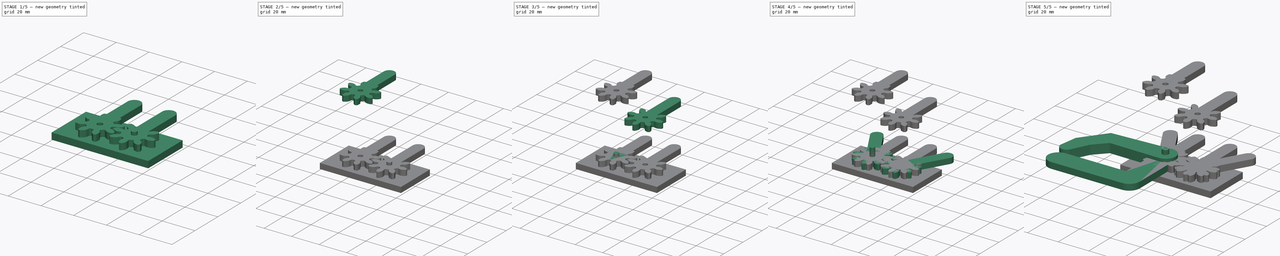
[diagram: build sequence overview — one tinted view per stage of 5, left to right]
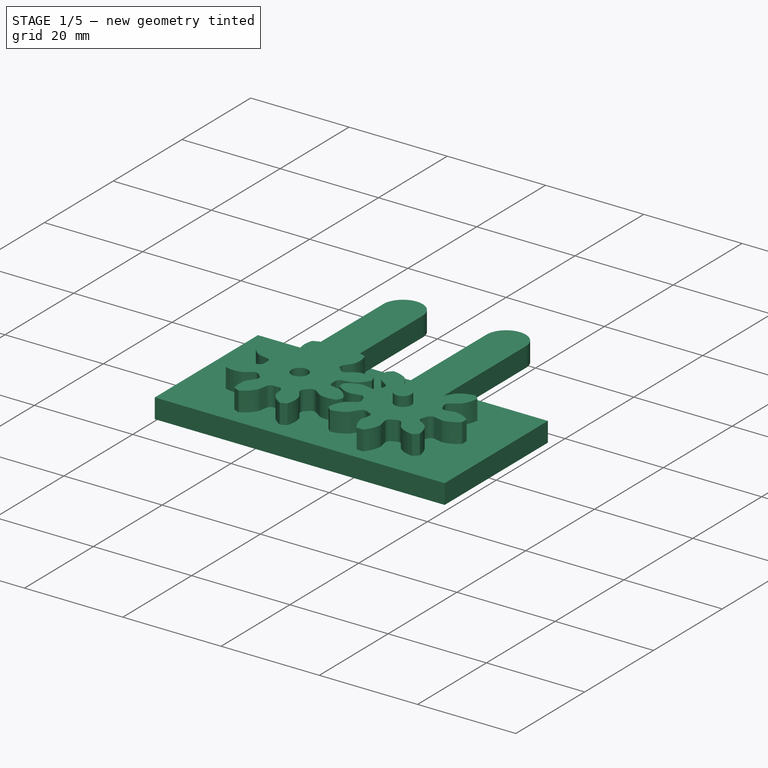
[diagram: stage 1 of 5 — iso view after this stage's code; geometry added in this stage tinted green]
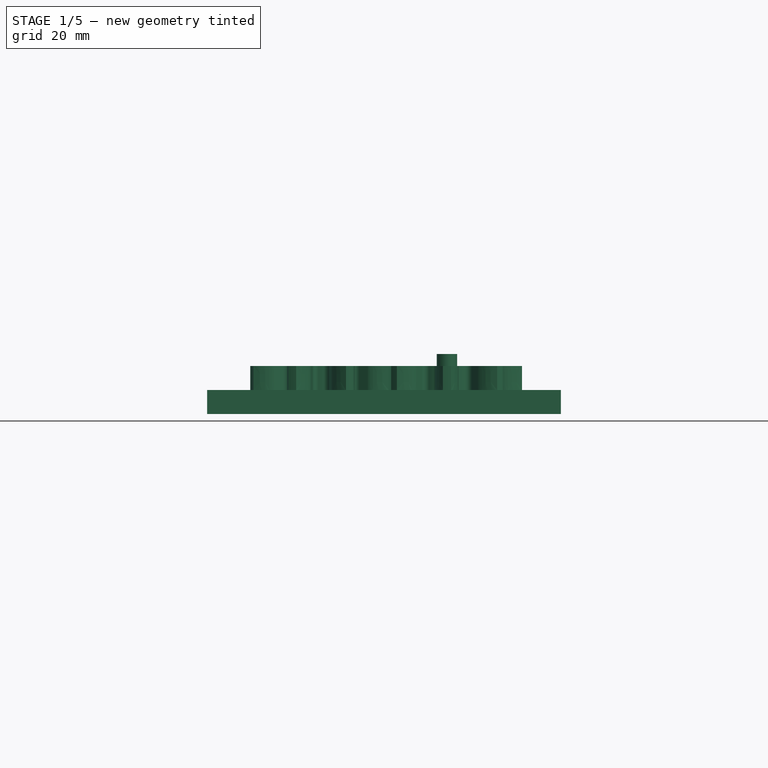
[diagram: stage 1 of 5 — front view after this stage's code; geometry added in this stage tinted green]
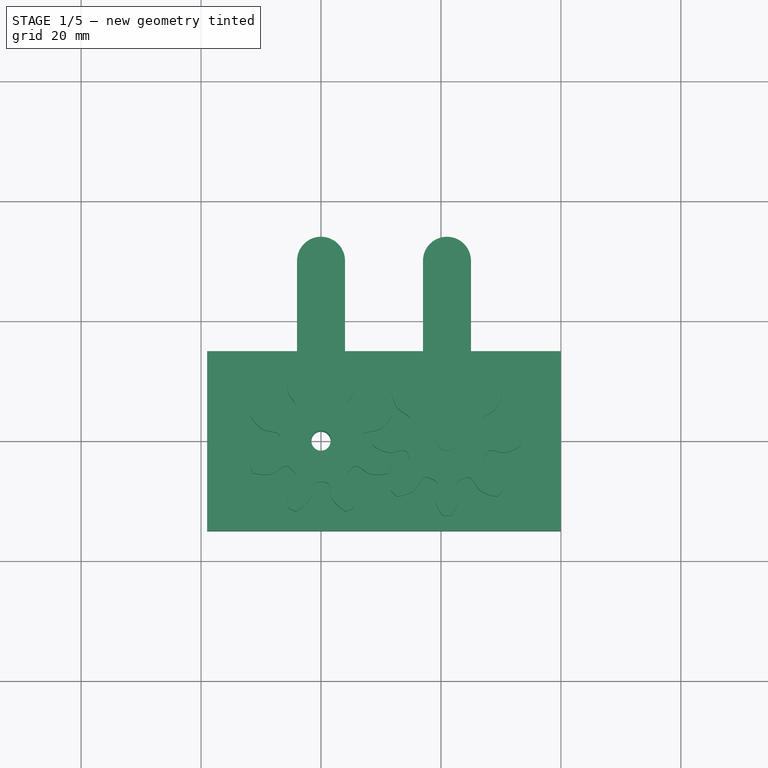
[diagram: stage 1 of 5 — top view after this stage's code; geometry added in this stage tinted green]
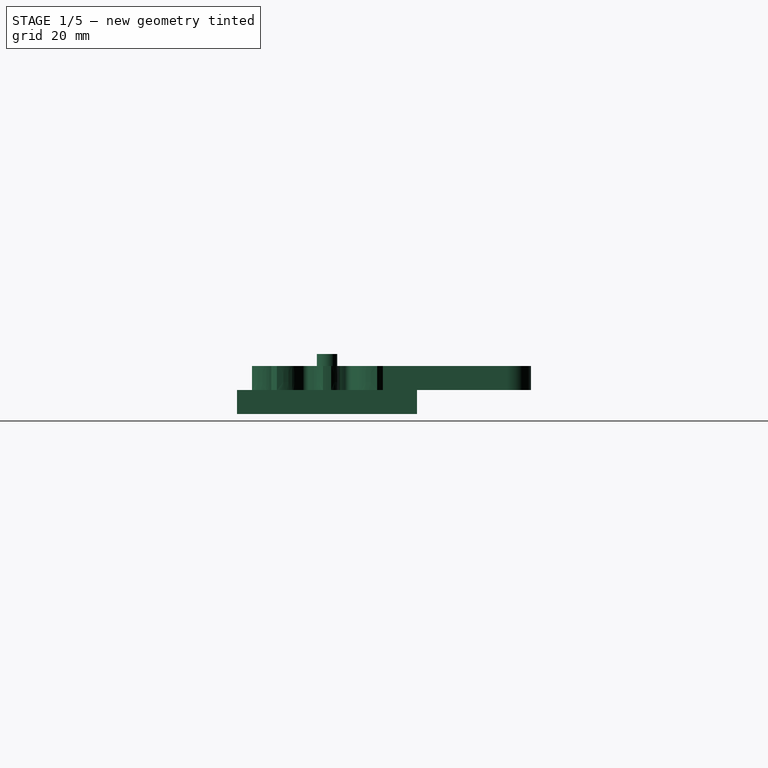
[diagram: stage 1 of 5 — right view after this stage's code; geometry added in this stage tinted green]
FCSTD DOCUMENT  (FreeCAD 0.19R24291 (Git))
Label: Pinza-simple-sim-alambrico
License: Creative Commons Attribution-ShareAlike
LicenseURL: http://creativecommons.org/licenses/by-sa/4.0/
objects: Part::Extrusion×20, Part::Feature×15, Sketcher::SketchObject×12, Part::Part2DObjectPython×10, Part::Cylinder×9, Part::Cut×9, Part::MultiFuse×6, App::DocumentObjectGroup×5, App::Part×2, Part::Mirroring×1
note: 82 computed .brp shape members not serialized (recipe doc carries the construction recipe); baked Part::Feature solids carry a one-line shape summary decoded from their .brp

FEATURE [App::DocumentObjectGroup] Group  label="Engranajes"
  Group = -> [Extrude003,Extrude004]
FEATURE [Part::Part2DObjectPython] InvoluteGear002  # Draft 2D object (typed FeaturePython)
  ExternalGear = true
  HighPrecision = true
  Modules = 2.5
  NumberOfTeeth = 8
  PressureAngle = 20
FEATURE [Part::Part2DObjectPython] InvoluteGear003  # Draft 2D object (typed FeaturePython)
  ExternalGear = true
  HighPrecision = true
  Modules = 2.5
  NumberOfTeeth = 8
  PressureAngle = 20
FEATURE [Part::Extrusion] Extrude005  label="Engranaje-izqdo"
  Base = -> InvoluteGear003
  Dir = (0,0,1)
  DirMode = 2
  FaceMakerClass = Part::FaceMakerBullseye
  LengthFwd = 4
  LengthRev = 0
  Placement = pos=(0,0,0) rot=(0,0,1;0.392699rad)
  Solid = true
  Symmetric = false
FEATURE [Part::Extrusion] Extrude006
  Base = -> InvoluteGear002
  Dir = (0,0,1)
  DirMode = 2
  FaceMakerClass = Part::FaceMakerBullseye
  LengthFwd = 4
  LengthRev = 0
  Placement = pos=(21,0,0) rot=(0,0,1;0rad)
  Solid = true
  Symmetric = false
FEATURE [Sketcher::SketchObject] Sketch002
  FullyConstrained = true
  sketch-geometry (4):
    g0: ArcOfCircle CenterX=0 CenterY=0 CenterZ=0 NormalX=0 NormalY=0 NormalZ=1 AngleXU=0 Radius=4 StartAngle=3.14159 EndAngle=6.28319
    g1: ArcOfCircle CenterX=0 CenterY=30 CenterZ=0 NormalX=0 NormalY=0 NormalZ=1 AngleXU=0 Radius=4 StartAngle=1e-16 EndAngle=3.14159
    g2: LineSegment StartX=4 StartY=-1e-15 StartZ=0 EndX=4 EndY=30 EndZ=0
    g3: LineSegment StartX=-4 StartY=-1.3e-15 StartZ=0 EndX=-4 EndY=30 EndZ=0
  constraints (9):
    c: Tangent(g0,g3) = 1.5708
    c: Tangent(g0,g2) = -1.5708
    c: Tangent(g2,g1) = -1.5708
    c: Tangent(g3,g1) = 1.5708
    c: Vertical(g2)
    c: Equal(g0,g1)
    c: Coincident(g0,g-1)
    c: DistanceY(g0,g1) = 30
    c: Radius(g0) = 4
FEATURE [Part::Extrusion] Extrude007  label="link"
  Base = -> Sketch002
  Dir = (0,0,1)
  DirMode = 2
  FaceMakerClass = Part::FaceMakerBullseye
  LengthFwd = 4
  LengthRev = 0
  Solid = true
  Symmetric = false
FEATURE [Part::MultiFuse] Fusion
  Refine = true
  Shapes = -> [Extrude005,Extrude007]
FEATURE [Sketcher::SketchObject] Sketch003
  FullyConstrained = true
  sketch-geometry (4):
    g0: ArcOfCircle CenterX=0 CenterY=0 CenterZ=0 NormalX=0 NormalY=0 NormalZ=1 AngleXU=0 Radius=4 StartAngle=3.14159 EndAngle=6.28319
    g1: ArcOfCircle CenterX=0 CenterY=30 CenterZ=0 NormalX=0 NormalY=0 NormalZ=1 AngleXU=0 Radius=4 StartAngle=1e-16 EndAngle=3.14159
    g2: LineSegment StartX=4 StartY=-1e-15 StartZ=0 EndX=4 EndY=30 EndZ=0
    g3: LineSegment StartX=-4 StartY=-1.3e-15 StartZ=0 EndX=-4 EndY=30 EndZ=0
  constraints (9):
    c: Tangent(g0,g3) = 1.5708
    c: Tangent(g0,g2) = -1.5708
    c: Tangent(g2,g1) = -1.5708
    c: Tangent(g3,g1) = 1.5708
    c: Vertical(g2)
    c: Equal(g0,g1)
    c: Coincident(g0,g-1)
    c: DistanceY(g0,g1) = 30
    c: Radius(g0) = 4
FEATURE [Part::Extrusion] Extrude008  label="link001"
  Base = -> Sketch003
  Dir = (0,0,1)
  DirMode = 2
  FaceMakerClass = Part::FaceMakerBullseye
  LengthFwd = 4
  LengthRev = 0
  Placement = pos=(21,0,0) rot=(0,0,1;0rad)
  Solid = true
  Symmetric = false
FEATURE [Part::Cylinder] Cylinder003
  Angle = 360
  AttacherType = Attacher::AttachEngine3D
  Height = 10
  Placement = pos=(0,0,-4) rot=(0,0,1;0rad)
  Radius = 1.7
FEATURE [Part::Cylinder] Cylinder004
  Angle = 360
  AttacherType = Attacher::AttachEngine3D
  Height = 10
  Placement = pos=(21,0,-4) rot=(0,0,1;0rad)
  Radius = 1.7
FEATURE [Part::Cut] Cut004
  Base = -> Fusion
  Refine = true
  Tool = -> Cylinder003
FEATURE [Sketcher::SketchObject] Sketch004
  FullyConstrained = true
  sketch-geometry (8):
    g0: LineSegment StartX=1e-16 StartY=0 StartZ=0 EndX=21 EndY=0 EndZ=0
    g1: LineSegment StartX=10.5 StartY=0 StartZ=0 EndX=10.5 EndY=15 EndZ=0
    g2: LineSegment StartX=-19 StartY=15 StartZ=0 EndX=40 EndY=15 EndZ=0
    g3: LineSegment StartX=40 StartY=15 StartZ=0 EndX=40 EndY=-15 EndZ=0
    g4: LineSegment StartX=40 StartY=-15 StartZ=0 EndX=-19 EndY=-15 EndZ=0
    g5: LineSegment StartX=-19 StartY=-15 StartZ=0 EndX=-19 EndY=15 EndZ=0
    g6: Circle CenterX=0 CenterY=0 CenterZ=0 NormalX=0 NormalY=0 NormalZ=1 AngleXU=0 Radius=1.6
    g7: Circle CenterX=21 CenterY=0 CenterZ=0 NormalX=0 NormalY=0 NormalZ=1 AngleXU=0 Radius=1.6
  constraints (21):
    c: Coincident(g0,g-1)
    c: PointOnObject(g0,g-1)
    c: PointOnObject(g1,g0)
    c: DistanceX(g0,g0) = 21
    c: Coincident(g2,g3)
    c: Coincident(g3,g4)
    c: Horizontal(g4)
    c: Coincident(g4,g5)
    c: Coincident(g5,g2)
    c: PointOnObject(g1,g2)
    c: Vertical(g5)
    c: Vertical(g3)
    c: Symmetric(g2,g3,g1)
    c: Symmetric(g0,g0,g1)
    c: Horizontal(g2)
    c: DistanceY(g5,g5) = 30
    c: DistanceX(g4,g4) = 59
    c: Coincident(g6,g-1)
    c: Coincident(g7,g0)
    c: Equal(g7,g6)
    c: Diameter(g7) = 3.2
FEATURE [Part::Extrusion] Extrude009
  Base = -> Sketch004
  Dir = (0,0,1)
  DirMode = 2
  FaceMakerClass = Part::FaceMakerBullseye
  LengthFwd = 4
  LengthRev = 0
  Reversed = true
  Solid = true
  Symmetric = false
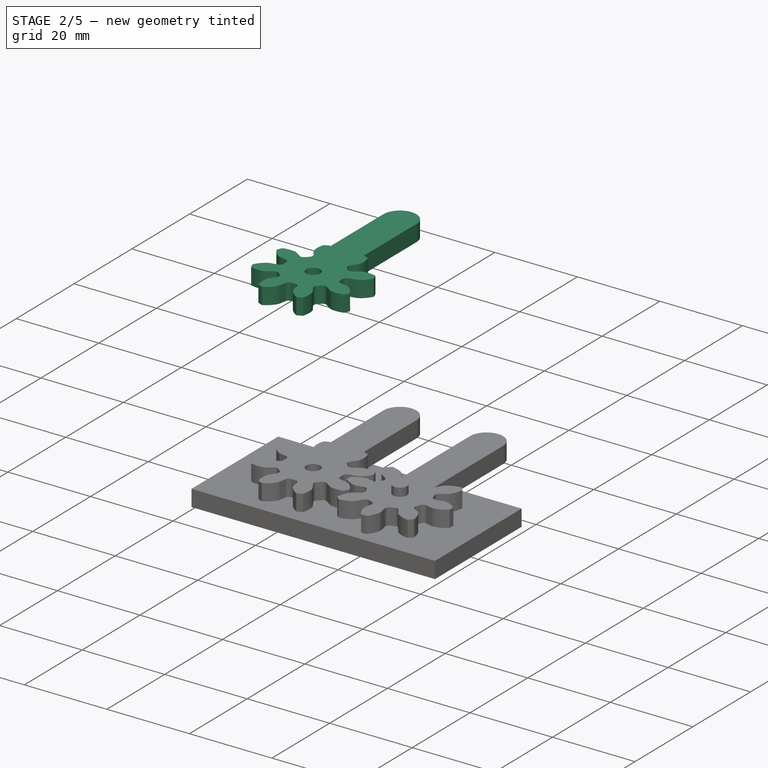
[diagram: stage 2 of 5 — iso view after this stage's code; geometry added in this stage tinted green]
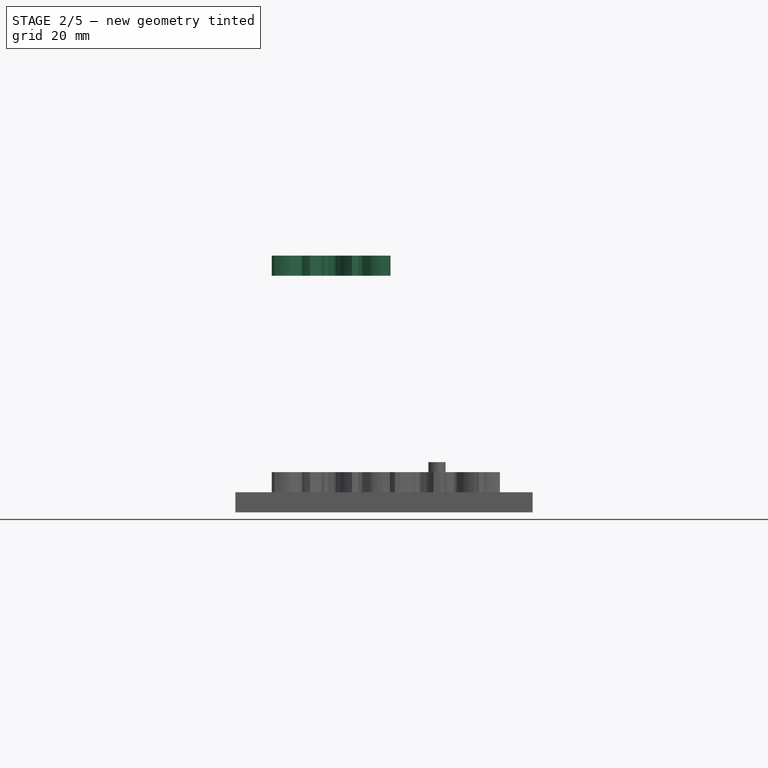
[diagram: stage 2 of 5 — front view after this stage's code; geometry added in this stage tinted green]
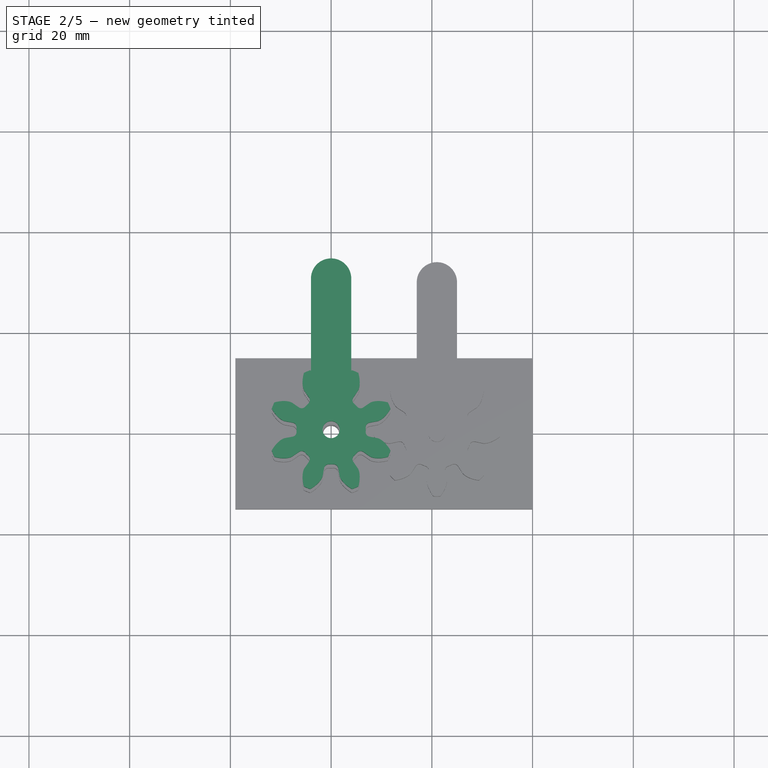
[diagram: stage 2 of 5 — top view after this stage's code; geometry added in this stage tinted green]
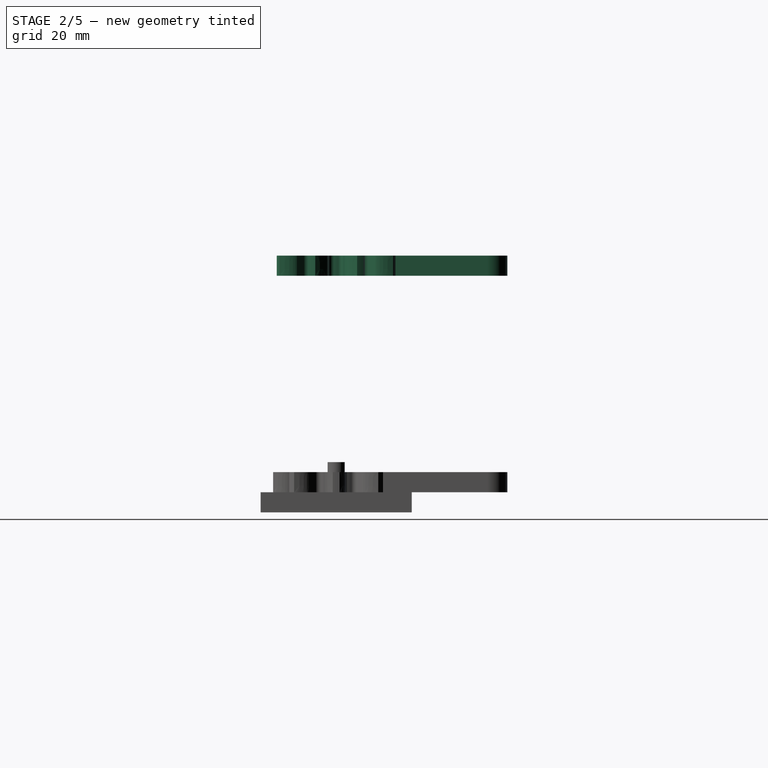
[diagram: stage 2 of 5 — right view after this stage's code; geometry added in this stage tinted green]
FEATURE [Part::MultiFuse] Fusion001
  Refine = true
  Shapes = -> [Extrude008,Extrude006]
FEATURE [Part::Cut] Cut003
  Base = -> Fusion001
  Refine = true
  Tool = -> Cylinder004
FEATURE [Part::Part2DObjectPython] InvoluteGear006  # Draft 2D object (typed FeaturePython)
  ExternalGear = true
  HighPrecision = true
  Modules = 2.5
  NumberOfTeeth = 8
  PressureAngle = 20
FEATURE [Part::Part2DObjectPython] InvoluteGear007  # Draft 2D object (typed FeaturePython)
  ExternalGear = true
  HighPrecision = true
  Modules = 2.5
  NumberOfTeeth = 8
  PressureAngle = 20
FEATURE [Part::Extrusion] Extrude018  label="Engranaje-izqdo002"
  Base = -> InvoluteGear007
  Dir = (0,0,1)
  DirMode = 2
  FaceMakerClass = Part::FaceMakerBullseye
  LengthFwd = 4
  LengthRev = 0
  Placement = pos=(0,0,0) rot=(0,0,1;0.392699rad)
  Solid = true
  Symmetric = false
FEATURE [Sketcher::SketchObject] Sketch011
  FullyConstrained = true
  sketch-geometry (4):
    g0: ArcOfCircle CenterX=0 CenterY=0 CenterZ=0 NormalX=0 NormalY=0 NormalZ=1 AngleXU=0 Radius=4 StartAngle=3.14159 EndAngle=6.28319
    g1: ArcOfCircle CenterX=0 CenterY=30 CenterZ=0 NormalX=0 NormalY=0 NormalZ=1 AngleXU=0 Radius=4 StartAngle=1e-16 EndAngle=3.14159
    g2: LineSegment StartX=4 StartY=-1e-15 StartZ=0 EndX=4 EndY=30 EndZ=0
    g3: LineSegment StartX=-4 StartY=-1.3e-15 StartZ=0 EndX=-4 EndY=30 EndZ=0
  constraints (9):
    c: Tangent(g0,g3) = 1.5708
    c: Tangent(g0,g2) = -1.5708
    c: Tangent(g2,g1) = -1.5708
    c: Tangent(g3,g1) = 1.5708
    c: Vertical(g2)
    c: Equal(g0,g1)
    c: Coincident(g0,g-1)
    c: DistanceY(g0,g1) = 30
    c: Radius(g0) = 4
FEATURE [Part::Extrusion] Extrude020  label="link004"
  Base = -> Sketch011
  Dir = (0,0,1)
  DirMode = 2
  FaceMakerClass = Part::FaceMakerBullseye
  LengthFwd = 4
  LengthRev = 0
  Solid = true
  Symmetric = false
FEATURE [Part::MultiFuse] Fusion004
  Refine = true
  Shapes = -> [Extrude018,Extrude020]
FEATURE [Sketcher::SketchObject] Sketch012
  FullyConstrained = true
  sketch-geometry (4):
    g0: ArcOfCircle CenterX=0 CenterY=0 CenterZ=0 NormalX=0 NormalY=0 NormalZ=1 AngleXU=0 Radius=4 StartAngle=3.14159 EndAngle=6.28319
    g1: ArcOfCircle CenterX=0 CenterY=30 CenterZ=0 NormalX=0 NormalY=0 NormalZ=1 AngleXU=0 Radius=4 StartAngle=1e-16 EndAngle=3.14159
    g2: LineSegment StartX=4 StartY=-1e-15 StartZ=0 EndX=4 EndY=30 EndZ=0
    g3: LineSegment StartX=-4 StartY=-1.3e-15 StartZ=0 EndX=-4 EndY=30 EndZ=0
  constraints (9):
    c: Tangent(g0,g3) = 1.5708
    c: Tangent(g0,g2) = -1.5708
    c: Tangent(g2,g1) = -1.5708
    c: Tangent(g3,g1) = 1.5708
    c: Vertical(g2)
    c: Equal(g0,g1)
    c: Coincident(g0,g-1)
    c: DistanceY(g0,g1) = 30
    c: Radius(g0) = 4
FEATURE [Part::Extrusion] Extrude021  label="link005"
  Base = -> Sketch012
  Dir = (0,0,1)
  DirMode = 2
  FaceMakerClass = Part::FaceMakerBullseye
  LengthFwd = 4
  LengthRev = 0
  Placement = pos=(21,0,0) rot=(0,0,1;0rad)
  Solid = true
  Symmetric = false
FEATURE [Part::Cylinder] Cylinder007
  Angle = 360
  AttacherType = Attacher::AttachEngine3D
  Height = 10
  Placement = pos=(0,0,-4) rot=(0,0,1;0rad)
  Radius = 1.7
FEATURE [Part::Cylinder] Cylinder008
  Angle = 360
  AttacherType = Attacher::AttachEngine3D
  Height = 10
  Placement = pos=(21,0,-4) rot=(0,0,1;0rad)
  Radius = 1.7
FEATURE [Part::Cut] Cut008
  Base = -> Fusion004
  Placement = pos=(0,0,43) rot=(0,0,1;0rad)
  Refine = true
  Tool = -> Cylinder007
FEATURE [Part::Part2DObjectPython] Line  # Draft 2D object (typed FeaturePython)
  Area = 0
  ChamferSize = 0
  Closed = false
  End = (-8.87805e-05,-1.01481e-06,-24)
  FilletRadius = 0
  Length = 104.4
  MakeFace = true
  Placement = pos=(0,-5.1e-15,80.4) rot=(0,0,1;0rad)
  Points = (2) [(0,0,0),(-8.87805e-05,-1.01481e-06,-104.4)]
  Start = (0,-5.1e-15,80.4)
  Subdivisions = 0
FEATURE [Part::Part2DObjectPython] Line001  # Draft 2D object (typed FeaturePython)
  Area = 0
  ChamferSize = 0
  Closed = false
  End = (20.9999,-8.54132e-07,-24.2)
  FilletRadius = 0
  Length = 105.5
  MakeFace = true
  Placement = pos=(21,-5.1e-15,81.3) rot=(0,0,1;0rad)
  Points = (2) [(0,0,0),(-7.47236e-05,-8.54132e-07,-105.5)]
  Start = (21,-5.1e-15,81.3)
  Subdivisions = 0
FEATURE [App::DocumentObjectGroup] Group003  label="Despiece"
  Group = -> [Chamfer027,Extrude017,Compound027,Compound028,Chamfer028,Cut007,Cut008,Line,Line001]
FEATURE [App::Part] Part001
  Group = -> [InvoluteGear002,Extrude006,Sketch003,Extrude008,Fusion001,Cylinder004,Cut003,Extrude005,InvoluteGear003,Sketch002,Extrude007,Fusion,Cylinder003,Cut004,Sketch004,Extrude009,Chamfer023,Compound023,Chamfer024,Compound024]
  Origin = -> Origin001
FEATURE [App::DocumentObjectGroup] Group001  label="Ensamble-1"
  Group = -> [Part001]
FEATURE [Sketcher::SketchObject] Sketch013  label="modelo-003"
  FullyConstrained = false
  Placement = pos=(0,0,0) rot=(1,0,0;1.5708rad)
  sketch-geometry (9):
    g0: LineSegment StartX=5 StartY=0 StartZ=0 EndX=11.3718 EndY=18.9578 EndZ=0
    g1: LineSegment StartX=-5 StartY=0 StartZ=0 EndX=5 EndY=0 EndZ=0
    g2: LineSegment StartX=-5 StartY=0 StartZ=0 EndX=-11.3718 EndY=18.9578 EndZ=0
    g3: LineSegment StartX=-11.3718 StartY=18.9578 StartZ=0 EndX=-4.75582 EndY=26.4564 EndZ=0
    g4: LineSegment StartX=11.3718 StartY=18.9578 StartZ=0 EndX=4.75582 EndY=26.4564 EndZ=0
    g5: LineSegment StartX=-4.30431 StartY=30.2102 StartZ=0 EndX=4.30431 EndY=30.2102 EndZ=0
    g6: LineSegment StartX=4.30431 StartY=30.2102 StartZ=0 EndX=4.30431 EndY=21.6016 EndZ=0
    g7: LineSegment StartX=4.30431 StartY=21.6016 StartZ=0 EndX=-4.30431 EndY=21.6016 EndZ=0
    g8: LineSegment StartX=-4.30431 StartY=21.6016 StartZ=0 EndX=-4.30431 EndY=30.2102 EndZ=0
  constraints (21):
    c: PointOnObject(g0,g-1)
    c: Distance(g0) = 20
    c: Symmetric(g1,g1,g-2)
    c: Coincident(g1,g0)
    c: DistanceX(g1,g1) = 10
    c: Coincident(g2,g1)
    c: Symmetric(g2,g0,g-2)
    c: Coincident(g3,g2)
    c: Angle(g2,g3) = 2.0944
    c: Distance(g3) = 10
    c: Coincident(g4,g0)
    c: Symmetric(g4,g3,g-2)
    c: Coincident(g5,g6)
    c: Coincident(g6,g7)
    c: Coincident(g7,g8)
    c: Coincident(g8,g5)
    c: Horizontal(g7)
    c: Vertical(g6)
    c: Vertical(g8)
    c: Symmetric(g5,g5,g-2)
    c: Equal(g7,g6)
FEATURE [App::DocumentObjectGroup] Group004  label="Modelos-alambricos"
  Group = -> [Sketch,Sketch001,Sketch013]
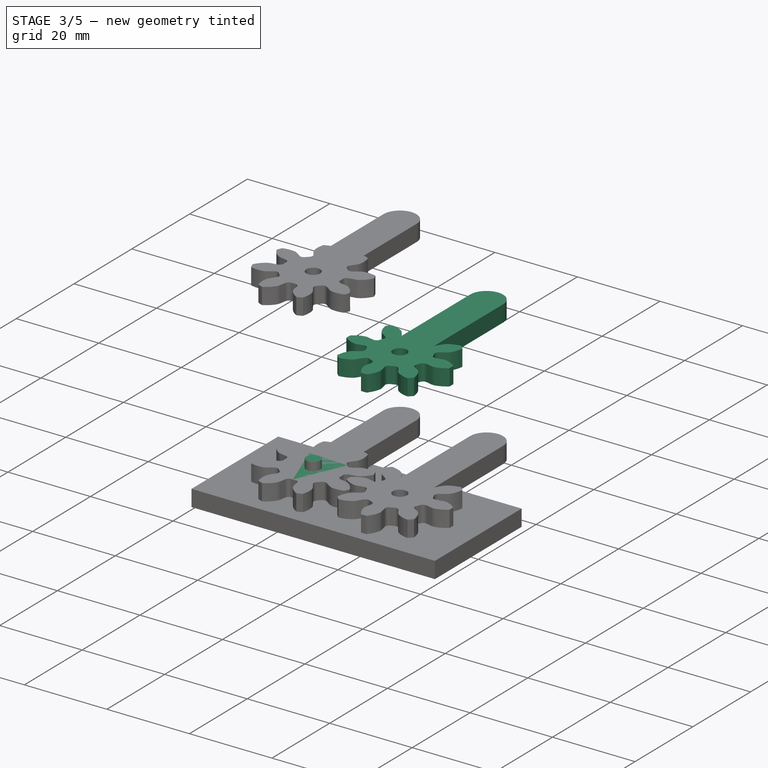
[diagram: stage 3 of 5 — iso view after this stage's code; geometry added in this stage tinted green]
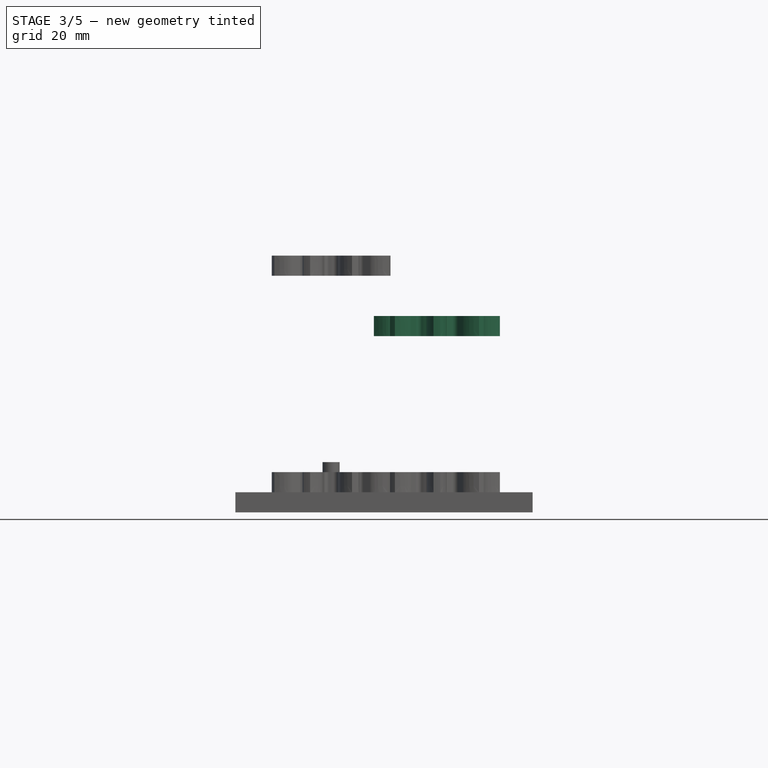
[diagram: stage 3 of 5 — front view after this stage's code; geometry added in this stage tinted green]
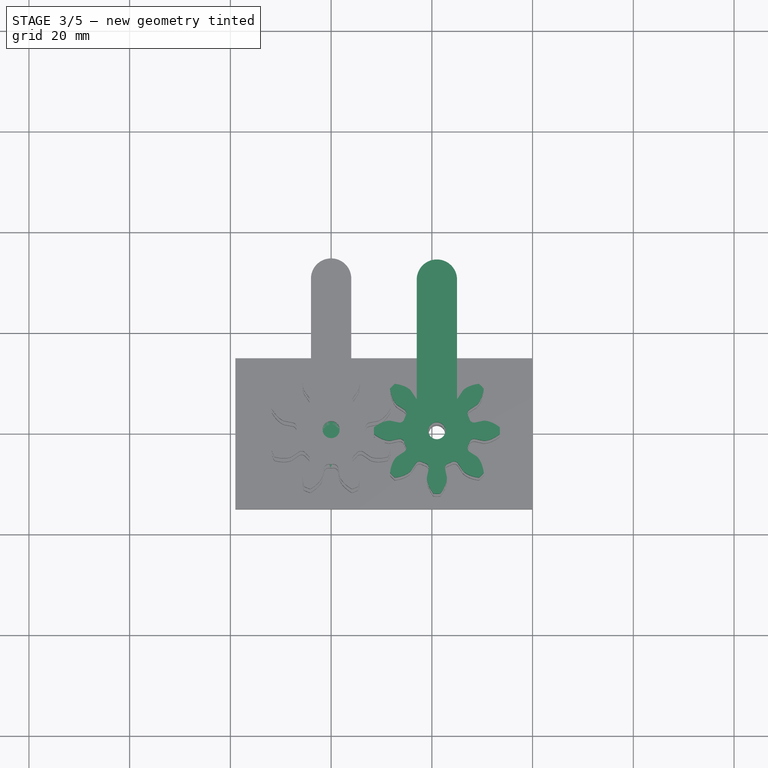
[diagram: stage 3 of 5 — top view after this stage's code; geometry added in this stage tinted green]
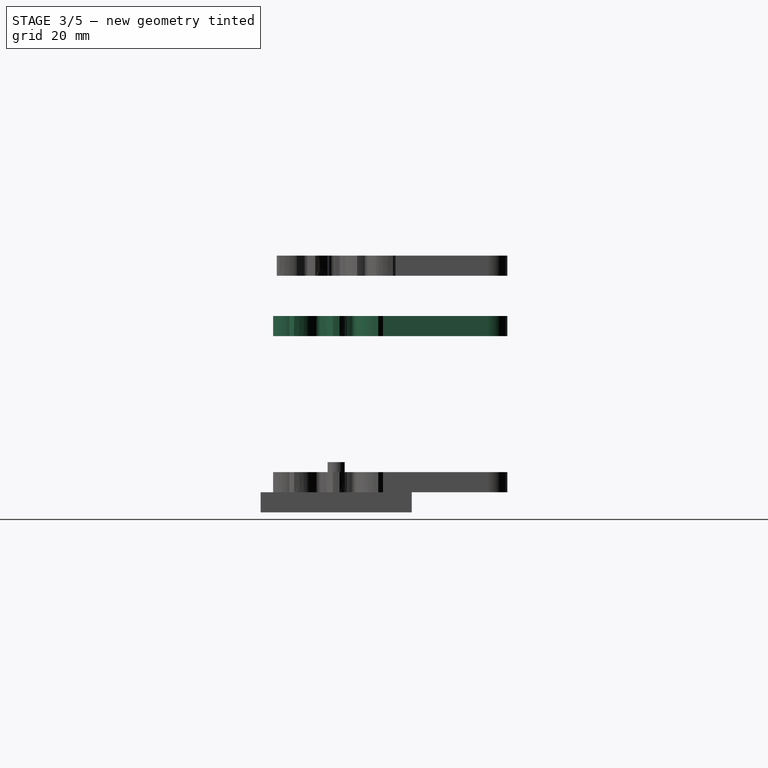
[diagram: stage 3 of 5 — right view after this stage's code; geometry added in this stage tinted green]
FEATURE [Part::Feature] Chamfer023  label="Bolt-M3x12-012"
  Placement = pos=(21,0,3.9) rot=(0,0,1;0rad)
  shape: bbox 5.5 x 5.5 x 15 mm, 16 faces (baked)
FEATURE [Part::Feature] Compound023  label="Nyloc-nut-M027"
  Placement = pos=(-1.47968e-05,-1.69135e-07,-4) rot=(-0.01143,0.999935,0;3.1416rad)
  shape: bbox 6.35 x 6.35 x 3.86 mm, 36 faces, 2 solids (baked)
FEATURE [Part::Feature] Chamfer024  label="Bolt-M3x12-013"
  Placement = pos=(0,0,4) rot=(0,0,1;0rad)
  shape: bbox 5.5 x 5.5 x 15 mm, 16 faces (baked)
FEATURE [Part::Feature] Compound024  label="Nyloc-nut-M028"
  Placement = pos=(21,6e-15,-4) rot=(-0.01143,0.999935,0;3.1416rad)
  shape: bbox 6.35 x 6.35 x 3.86 mm, 36 faces, 2 solids (baked)
FEATURE [Part::Part2DObjectPython] InvoluteGear004  # Draft 2D object (typed FeaturePython)
  ExternalGear = true
  HighPrecision = true
  Modules = 2.5
  NumberOfTeeth = 8
  PressureAngle = 20
FEATURE [Part::Part2DObjectPython] InvoluteGear005  # Draft 2D object (typed FeaturePython)
  ExternalGear = true
  HighPrecision = true
  Modules = 2.5
  NumberOfTeeth = 8
  PressureAngle = 20
FEATURE [Part::Extrusion] Extrude010  label="Engranaje-izqdo001"
  Base = -> InvoluteGear005
  Dir = (0,0,1)
  DirMode = 2
  FaceMakerClass = Part::FaceMakerBullseye
  LengthFwd = 4
  LengthRev = 0
  Placement = pos=(0,0,0) rot=(0,0,1;0.392699rad)
  Solid = true
  Symmetric = false
FEATURE [Sketcher::SketchObject] Sketch005
  FullyConstrained = true
  sketch-geometry (4):
    g0: ArcOfCircle CenterX=0 CenterY=0 CenterZ=0 NormalX=0 NormalY=0 NormalZ=1 AngleXU=0 Radius=4 StartAngle=3.14159 EndAngle=6.28319
    g1: ArcOfCircle CenterX=0 CenterY=30 CenterZ=0 NormalX=0 NormalY=0 NormalZ=1 AngleXU=0 Radius=4 StartAngle=1e-16 EndAngle=3.14159
    g2: LineSegment StartX=4 StartY=-1e-15 StartZ=0 EndX=4 EndY=30 EndZ=0
    g3: LineSegment StartX=-4 StartY=-1.3e-15 StartZ=0 EndX=-4 EndY=30 EndZ=0
  constraints (9):
    c: Tangent(g0,g3) = 1.5708
    c: Tangent(g0,g2) = -1.5708
    c: Tangent(g2,g1) = -1.5708
    c: Tangent(g3,g1) = 1.5708
    c: Vertical(g2)
    c: Equal(g0,g1)
    c: Coincident(g0,g-1)
    c: DistanceY(g0,g1) = 30
    c: Radius(g0) = 4
FEATURE [Part::Extrusion] Extrude012  label="link002"
  Base = -> Sketch005
  Dir = (0,0,1)
  DirMode = 2
  FaceMakerClass = Part::FaceMakerBullseye
  LengthFwd = 4
  LengthRev = 0
  Solid = true
  Symmetric = false
FEATURE [Part::MultiFuse] Fusion002
  Refine = true
  Shapes = -> [Extrude010,Extrude012]
FEATURE [Part::Cylinder] Cylinder005
  Angle = 360
  AttacherType = Attacher::AttachEngine3D
  Height = 10
  Placement = pos=(0,0,-4) rot=(0,0,1;0rad)
  Radius = 1.7
FEATURE [Sketcher::SketchObject] Sketch007
  FullyConstrained = true
  sketch-geometry (8):
    g0: LineSegment StartX=1e-16 StartY=0 StartZ=0 EndX=21 EndY=0 EndZ=0
    g1: LineSegment StartX=10.5 StartY=0 StartZ=0 EndX=10.5 EndY=15 EndZ=0
    g2: LineSegment StartX=-19 StartY=15 StartZ=0 EndX=40 EndY=15 EndZ=0
    g3: LineSegment StartX=40 StartY=15 StartZ=0 EndX=40 EndY=-15 EndZ=0
    g4: LineSegment StartX=40 StartY=-15 StartZ=0 EndX=-19 EndY=-15 EndZ=0
    g5: LineSegment StartX=-19 StartY=-15 StartZ=0 EndX=-19 EndY=15 EndZ=0
    g6: Circle CenterX=0 CenterY=0 CenterZ=0 NormalX=0 NormalY=0 NormalZ=1 AngleXU=0 Radius=1.6
    g7: Circle CenterX=21 CenterY=0 CenterZ=0 NormalX=0 NormalY=0 NormalZ=1 AngleXU=0 Radius=1.6
  constraints (21):
    c: Coincident(g0,g-1)
    c: PointOnObject(g0,g-1)
    c: PointOnObject(g1,g0)
    c: DistanceX(g0,g0) = 21
    c: Coincident(g2,g3)
    c: Coincident(g3,g4)
    c: Horizontal(g4)
    c: Coincident(g4,g5)
    c: Coincident(g5,g2)
    c: PointOnObject(g1,g2)
    c: Vertical(g5)
    c: Vertical(g3)
    c: Symmetric(g2,g3,g1)
    c: Symmetric(g0,g0,g1)
    c: Horizontal(g2)
    c: DistanceY(g5,g5) = 30
    c: DistanceX(g4,g4) = 59
    c: Coincident(g6,g-1)
    c: Coincident(g7,g0)
    c: Equal(g7,g6)
    c: Diameter(g7) = 3.2
FEATURE [Part::Extrusion] Extrude014
  Base = -> Sketch007
  Dir = (0,0,1)
  DirMode = 2
  FaceMakerClass = Part::FaceMakerBullseye
  LengthFwd = 4
  LengthRev = 0
  Reversed = true
  Solid = true
  Symmetric = false
FEATURE [Part::Feature] Chamfer025  label="Bolt-M3x12-014"
  Placement = pos=(21,0,3.9) rot=(0,0,1;0rad)
  shape: bbox 5.5 x 5.5 x 15 mm, 16 faces (baked)
FEATURE [Part::Feature] Compound025  label="Nyloc-nut-M029"
  Placement = pos=(-1.47968e-05,-1.69135e-07,-4) rot=(-0.01143,0.999935,0;3.1416rad)
  shape: bbox 6.35 x 6.35 x 3.86 mm, 36 faces, 2 solids (baked)
FEATURE [Part::Feature] Chamfer026  label="Bolt-M3x12-015"
  Placement = pos=(0,0,4) rot=(0,0,1;0rad)
  shape: bbox 5.5 x 5.5 x 15 mm, 16 faces (baked)
FEATURE [Part::Feature] Compound026  label="Nyloc-nut-M030"
  Placement = pos=(21,6e-15,-4) rot=(-0.01143,0.999935,0;3.1416rad)
  shape: bbox 6.35 x 6.35 x 3.86 mm, 36 faces, 2 solids (baked)
FEATURE [App::DocumentObjectGroup] Group002  label="Ensamble-002"
  Group = -> [Cut005,Cut006,Extrude014,Chamfer025,Compound025,Chamfer026,Compound026]
FEATURE [Part::Feature] Chamfer027  label="Bolt-M3x12-016"
  Placement = pos=(21,0,92.9) rot=(0,0,1;0rad)
  shape: bbox 5.5 x 5.5 x 15 mm, 16 faces (baked)
FEATURE [Part::Feature] Compound027  label="Nyloc-nut-M031"
  Placement = pos=(20.9999,-8.45676e-07,-24) rot=(-0.01143,0.999935,0;3.1416rad)
  shape: bbox 6.35 x 6.35 x 3.86 mm, 36 faces, 2 solids (baked)
FEATURE [Part::Feature] Compound028  label="Nyloc-nut-M032"
  Placement = pos=(-8.87805e-05,-1.01481e-06,-24) rot=(-0.01143,0.999935,0;3.1416rad)
  shape: bbox 6.35 x 6.35 x 3.86 mm, 36 faces, 2 solids (baked)
FEATURE [Part::Feature] Chamfer028  label="Bolt-M3x12-017"
  Placement = pos=(0,0,92) rot=(0,0,1;0rad)
  shape: bbox 5.5 x 5.5 x 15 mm, 16 faces (baked)
FEATURE [Sketcher::SketchObject] Sketch010
  FullyConstrained = true
  sketch-geometry (8):
    g0: LineSegment StartX=1e-16 StartY=0 StartZ=0 EndX=21 EndY=0 EndZ=0
    g1: LineSegment StartX=10.5 StartY=0 StartZ=0 EndX=10.5 EndY=15 EndZ=0
    g2: LineSegment StartX=-19 StartY=15 StartZ=0 EndX=40 EndY=15 EndZ=0
    g3: LineSegment StartX=40 StartY=15 StartZ=0 EndX=40 EndY=-15 EndZ=0
    g4: LineSegment StartX=40 StartY=-15 StartZ=0 EndX=-19 EndY=-15 EndZ=0
    g5: LineSegment StartX=-19 StartY=-15 StartZ=0 EndX=-19 EndY=15 EndZ=0
    g6: Circle CenterX=0 CenterY=0 CenterZ=0 NormalX=0 NormalY=0 NormalZ=1 AngleXU=0 Radius=1.6
    g7: Circle CenterX=21 CenterY=0 CenterZ=0 NormalX=0 NormalY=0 NormalZ=1 AngleXU=0 Radius=1.6
  constraints (21):
    c: Coincident(g0,g-1)
    c: PointOnObject(g0,g-1)
    c: PointOnObject(g1,g0)
    c: DistanceX(g0,g0) = 21
    c: Coincident(g2,g3)
    c: Coincident(g3,g4)
    c: Horizontal(g4)
    c: Coincident(g4,g5)
    c: Coincident(g5,g2)
    c: PointOnObject(g1,g2)
    c: Vertical(g5)
    c: Vertical(g3)
    c: Symmetric(g2,g3,g1)
    c: Symmetric(g0,g0,g1)
    c: Horizontal(g2)
    c: DistanceY(g5,g5) = 30
    c: DistanceX(g4,g4) = 59
    c: Coincident(g6,g-1)
    c: Coincident(g7,g0)
    c: Equal(g7,g6)
    c: Diameter(g7) = 3.2
FEATURE [Part::Extrusion] Extrude017
  Base = -> Sketch010
  Dir = (0,0,1)
  DirMode = 2
  FaceMakerClass = Part::FaceMakerBullseye
  LengthFwd = 4
  LengthRev = 0
  Reversed = true
  Solid = true
  Symmetric = false
FEATURE [Part::Extrusion] Extrude019
  Base = -> InvoluteGear006
  Dir = (0,0,1)
  DirMode = 2
  FaceMakerClass = Part::FaceMakerBullseye
  LengthFwd = 4
  LengthRev = 0
  Placement = pos=(21,0,0) rot=(0,0,1;0rad)
  Solid = true
  Symmetric = false
FEATURE [Part::MultiFuse] Fusion005
  Refine = true
  Shapes = -> [Extrude021,Extrude019]
FEATURE [Part::Cut] Cut007
  Base = -> Fusion005
  Placement = pos=(0,0,31) rot=(0,0,1;0rad)
  Refine = true
  Tool = -> Cylinder008
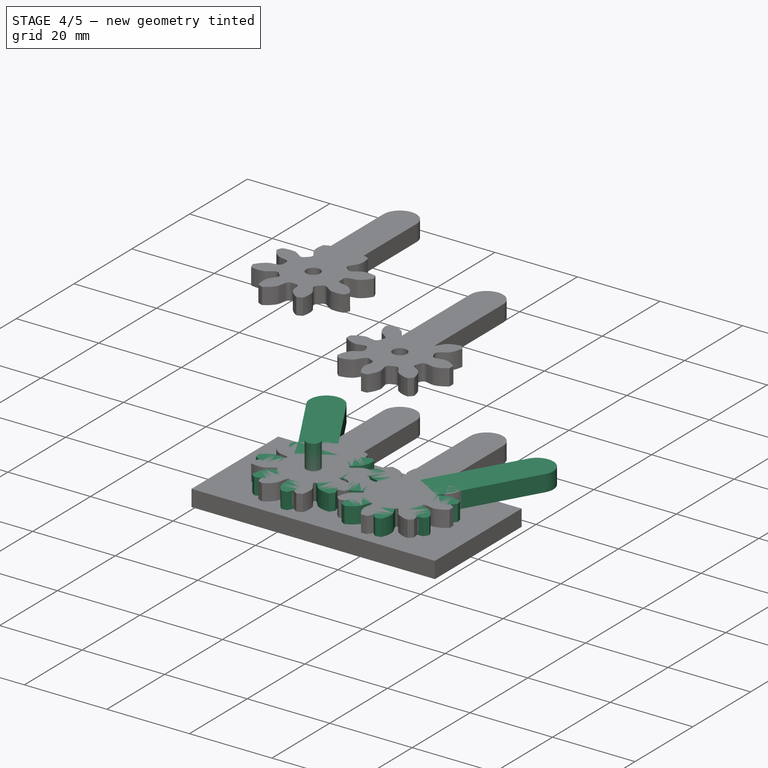
[diagram: stage 4 of 5 — iso view after this stage's code; geometry added in this stage tinted green]
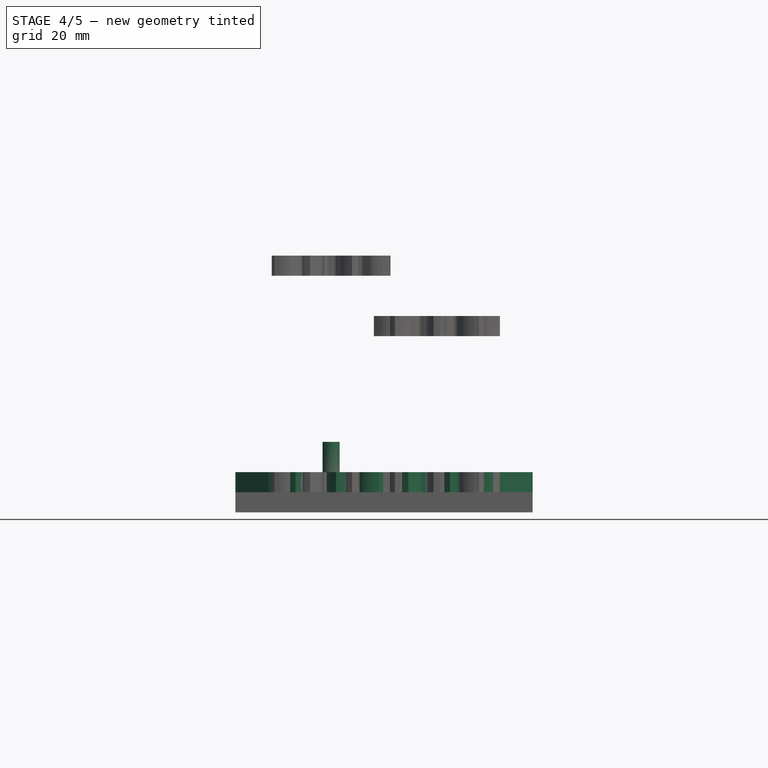
[diagram: stage 4 of 5 — front view after this stage's code; geometry added in this stage tinted green]
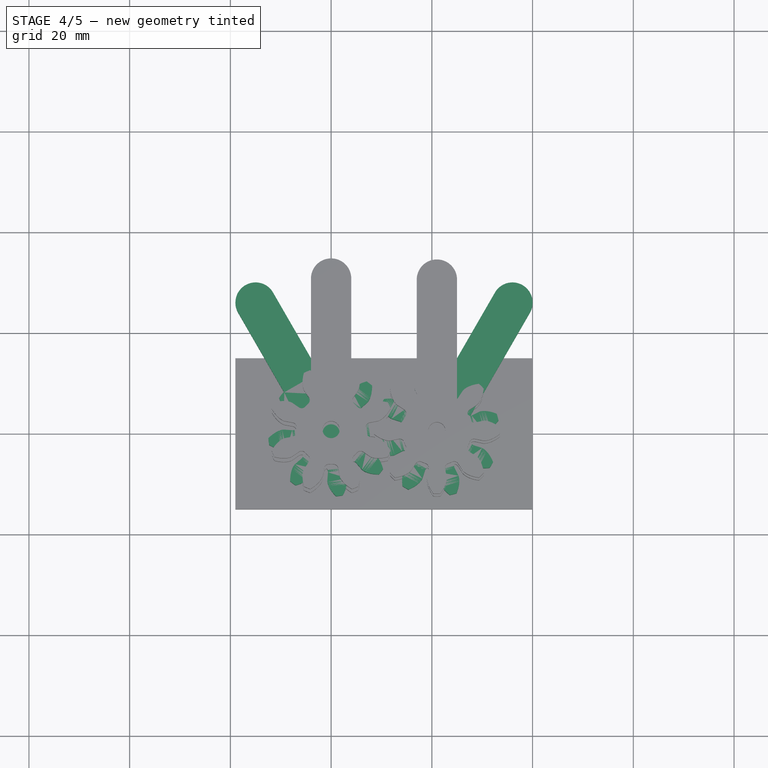
[diagram: stage 4 of 5 — top view after this stage's code; geometry added in this stage tinted green]
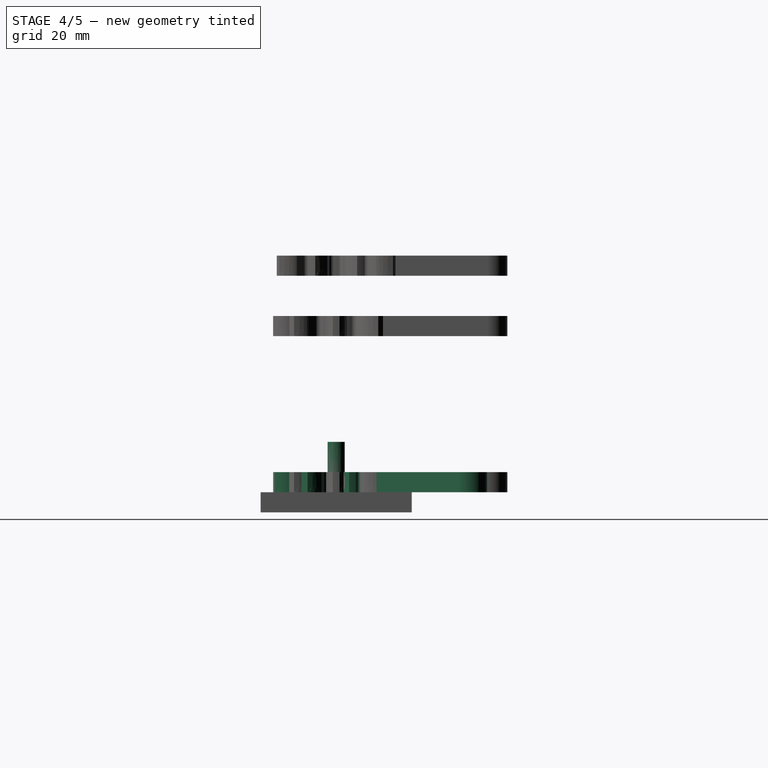
[diagram: stage 4 of 5 — right view after this stage's code; geometry added in this stage tinted green]
FEATURE [Part::Cylinder] Cylinder001
  Angle = 360
  AttacherType = Attacher::AttachEngine3D
  Height = 10
  Radius = 1.7
FEATURE [App::Part] Part  label="Pinza-simple"
  Group = -> [path6921,Extrude,Extrude002,Cylinder,Cut,Part__Mirroring,path7141_3,Cylinder001,Cut001,Extrude001,path7141,Cylinder002,Cut002]
  Origin = -> Origin
  Placement = pos=(27,0,-6e-15) rot=(-0.57735,-0.57735,0.57735;4.18879rad)
FEATURE [Sketcher::SketchObject] Sketch  label="modelo-1"
  FullyConstrained = false
  Placement = pos=(0,0,0) rot=(1,0,0;1.5708rad)
  sketch-geometry (5):
    g0: LineSegment StartX=0 StartY=0 StartZ=0 EndX=27.0546 EndY=0 EndZ=0
    g1: LineSegment StartX=0 StartY=48.2419 StartZ=0 EndX=0 EndY=0 EndZ=0
    g2: LineSegment StartX=27.0546 StartY=0 StartZ=0 EndX=27.4134 EndY=35.1121 EndZ=0
    g3: LineSegment StartX=27.4134 StartY=35.1121 StartZ=0 EndX=14.326 EndY=47.0117 EndZ=0
    g4: LineSegment StartX=14.326 StartY=47.0117 StartZ=0 EndX=1.52684 EndY=49.2723 EndZ=0
  constraints (14):
    c: PointOnObject(g1,g-2)
    c: Coincident(g1,g0)
    c: DistanceX(g0,g0) = 27.0546
    c: DistanceY(g1,g1) = 48.2419
    c: Coincident(g0,g-1)
    c: Coincident(g0,g2)
    c: Coincident(g2,g3)
    c: Coincident(g3,g4)
    c: Angle(g3,g2) = 2.29848
    c: Angle(g4,g3) = 2.57851
    c: PointOnObject(g2,g-1)
    c: Distance(g3) = 17.6884
    c: Distance(g4) = 12.9973
    c: Distance(g2) = 35.1139
FEATURE [Sketcher::SketchObject] Sketch001  label="modelo-002"
  FullyConstrained = false
  Placement = pos=(0,0,0) rot=(1,0,0;1.5708rad)
  sketch-geometry (3):
    g0: LineSegment StartX=19.5 StartY=0 StartZ=0 EndX=21.0469 EndY=55.471 EndZ=0
    g1: LineSegment StartX=-19.5 StartY=0 StartZ=0 EndX=19.5 EndY=0 EndZ=0
    g2: LineSegment StartX=-19.5 StartY=0 StartZ=0 EndX=-21.0469 EndY=55.471 EndZ=0
  constraints (7):
    c: PointOnObject(g0,g-1)
    c: Distance(g0) = 55.4926
    c: Symmetric(g1,g1,g-2)
    c: Coincident(g1,g0)
    c: DistanceX(g1,g1) = 39
    c: Coincident(g2,g1)
    c: Symmetric(g2,g0,g-2)
FEATURE [Part::Part2DObjectPython] InvoluteGear  # Draft 2D object (typed FeaturePython)
  ExternalGear = true
  HighPrecision = true
  Modules = 2.5
  NumberOfTeeth = 8
  PressureAngle = 20
FEATURE [Part::Extrusion] Extrude003
  Base = -> InvoluteGear
  Dir = (0,0,1)
  DirMode = 2
  FaceMakerClass = Part::FaceMakerBullseye
  LengthFwd = 4
  LengthRev = 0
  Placement = pos=(0,0,0) rot=(0,0,1;0.392699rad)
  Solid = true
  Symmetric = false
FEATURE [Part::Part2DObjectPython] InvoluteGear001  # Draft 2D object (typed FeaturePython)
  ExternalGear = true
  HighPrecision = true
  Modules = 2.5
  NumberOfTeeth = 8
  PressureAngle = 20
FEATURE [Part::Extrusion] Extrude004
  Base = -> InvoluteGear001
  Dir = (0,0,1)
  DirMode = 2
  FaceMakerClass = Part::FaceMakerBullseye
  LengthFwd = 4
  LengthRev = 0
  Placement = pos=(21,0,0) rot=(0,0,1;0rad)
  Solid = true
  Symmetric = false
FEATURE [Part::Extrusion] Extrude011
  Base = -> InvoluteGear004
  Dir = (0,0,1)
  DirMode = 2
  FaceMakerClass = Part::FaceMakerBullseye
  LengthFwd = 4
  LengthRev = 0
  Placement = pos=(21,0,0) rot=(0,0,1;0rad)
  Solid = true
  Symmetric = false
FEATURE [Sketcher::SketchObject] Sketch006
  FullyConstrained = true
  sketch-geometry (4):
    g0: ArcOfCircle CenterX=0 CenterY=0 CenterZ=0 NormalX=0 NormalY=0 NormalZ=1 AngleXU=0 Radius=4 StartAngle=3.14159 EndAngle=6.28319
    g1: ArcOfCircle CenterX=0 CenterY=30 CenterZ=0 NormalX=0 NormalY=0 NormalZ=1 AngleXU=0 Radius=4 StartAngle=1e-16 EndAngle=3.14159
    g2: LineSegment StartX=4 StartY=-1e-15 StartZ=0 EndX=4 EndY=30 EndZ=0
    g3: LineSegment StartX=-4 StartY=-1.3e-15 StartZ=0 EndX=-4 EndY=30 EndZ=0
  constraints (9):
    c: Tangent(g0,g3) = 1.5708
    c: Tangent(g0,g2) = -1.5708
    c: Tangent(g2,g1) = -1.5708
    c: Tangent(g3,g1) = 1.5708
    c: Vertical(g2)
    c: Equal(g0,g1)
    c: Coincident(g0,g-1)
    c: DistanceY(g0,g1) = 30
    c: Radius(g0) = 4
FEATURE [Part::Extrusion] Extrude013  label="link003"
  Base = -> Sketch006
  Dir = (0,0,1)
  DirMode = 2
  FaceMakerClass = Part::FaceMakerBullseye
  LengthFwd = 4
  LengthRev = 0
  Placement = pos=(21,0,0) rot=(0,0,1;0rad)
  Solid = true
  Symmetric = false
FEATURE [Part::MultiFuse] Fusion003
  Refine = true
  Shapes = -> [Extrude013,Extrude011]
FEATURE [Part::Cylinder] Cylinder006
  Angle = 360
  AttacherType = Attacher::AttachEngine3D
  Height = 10
  Placement = pos=(21,0,-4) rot=(0,0,1;0rad)
  Radius = 1.7
FEATURE [Part::Cut] Cut005
  Base = -> Fusion003
  Placement = pos=(2.81347,10.5,0) rot=(0,0,-1;0.523599rad)
  Refine = true
  Tool = -> Cylinder006
FEATURE [Part::Cut] Cut006
  Base = -> Fusion002
  Placement = pos=(0,0,0) rot=(0,0,1;0.523599rad)
  Refine = true
  Tool = -> Cylinder005
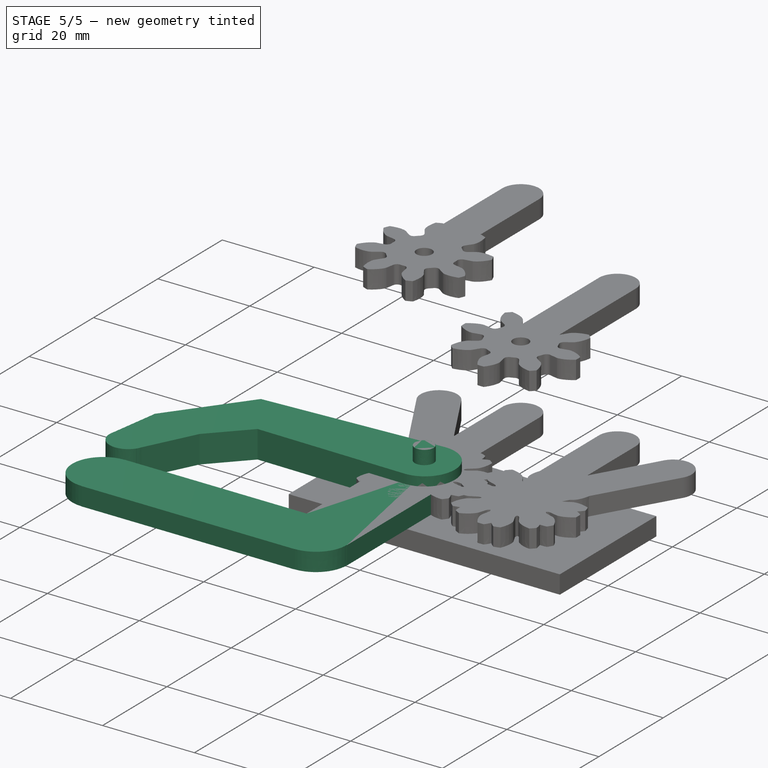
[diagram: stage 5 of 5 — iso view after this stage's code; geometry added in this stage tinted green]
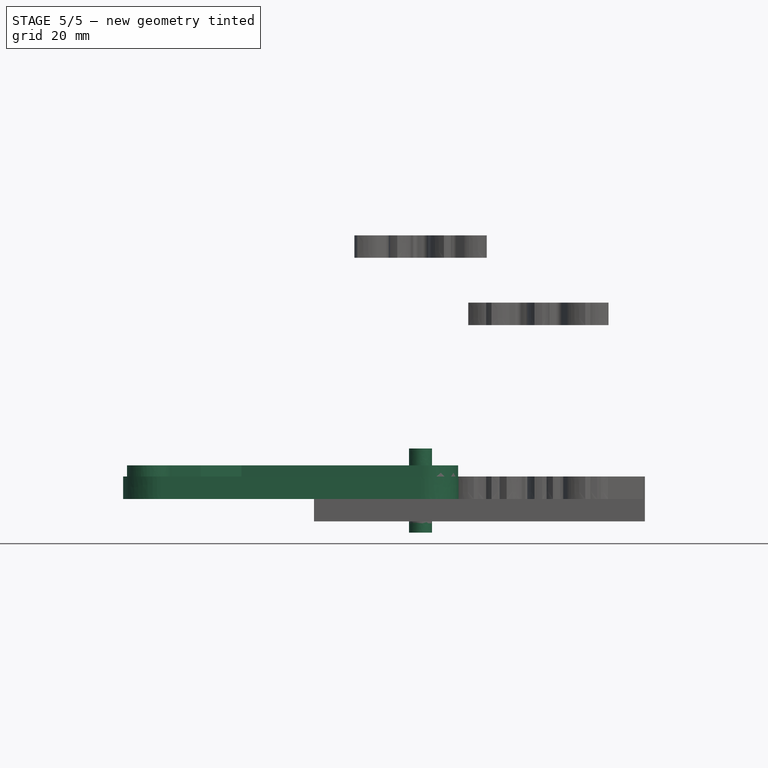
[diagram: stage 5 of 5 — front view after this stage's code; geometry added in this stage tinted green]
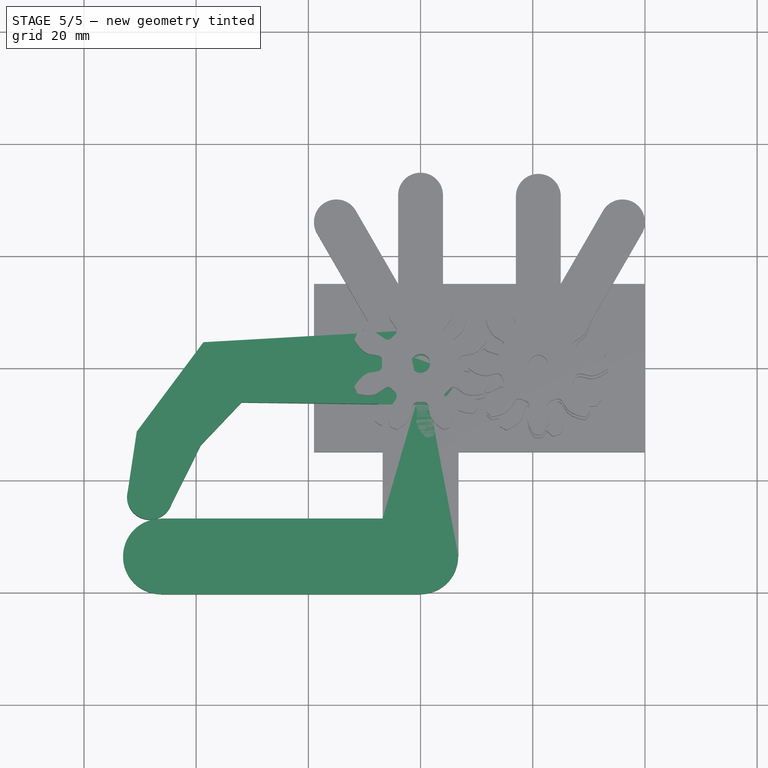
[diagram: stage 5 of 5 — top view after this stage's code; geometry added in this stage tinted green]
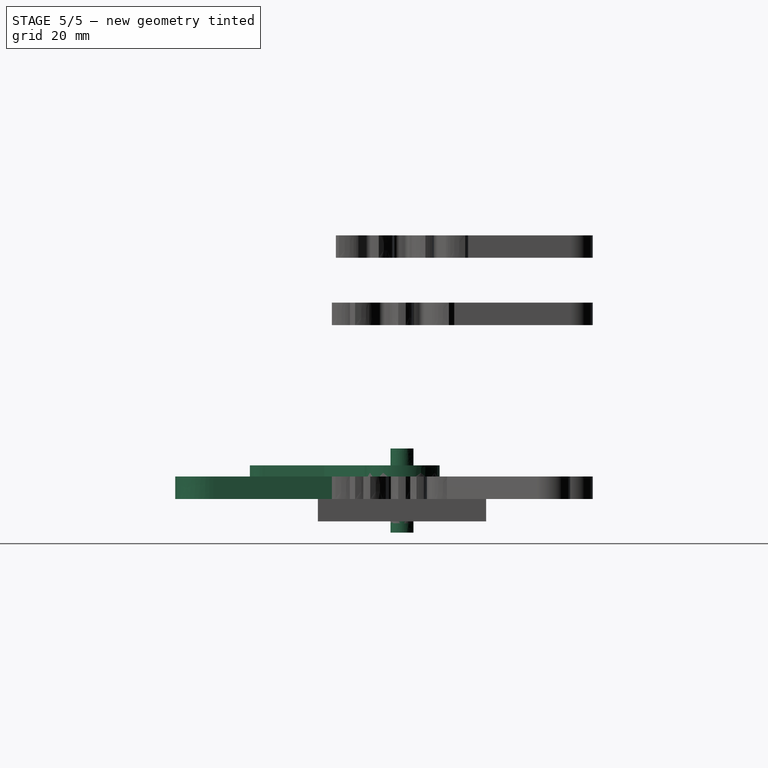
[diagram: stage 5 of 5 — right view after this stage's code; geometry added in this stage tinted green]
FEATURE [Part::Cylinder] Cylinder
  Angle = 360
  AttacherType = Attacher::AttachEngine3D
  Height = 10
  Placement = pos=(0,0,-2) rot=(0,0,1;0rad)
  Radius = 9.5
FEATURE [Part::Feature] path7141  label="dedo-fijo-path"
  shape: bbox 59.79 x 47.13 x 2e-07 mm, 1 faces, 0 solids (baked)
FEATURE [Part::Extrusion] Extrude001
  Base = -> path7141
  Dir = (0,0,1)
  DirMode = 0
  FaceMakerClass = Part::FaceMakerBullseye
  LengthFwd = 4
  LengthRev = 0
  Solid = false
  Symmetric = false
FEATURE [Part::Feature] path7141_3  label="dedo-movil-path"
  shape: bbox 59.03 x 33.84 x 2e-07 mm, 1 faces, 0 solids (baked)
FEATURE [Part::Extrusion] Extrude002  label="Dedo-movil-base"
  Base = -> path7141_3
  Dir = (0,0,1)
  DirMode = 0
  FaceMakerClass = Part::FaceMakerBullseye
  LengthFwd = 6
  LengthRev = 0
  Placement = pos=(0,0,-4) rot=(0,0,1;0rad)
  Solid = false
  Symmetric = false
FEATURE [Part::Cut] Cut
  Base = -> Extrude002
  Placement = pos=(0,0,2) rot=(0,0,-1;0.261799rad)
  Refine = true
  Tool = -> Cylinder
FEATURE [Part::Mirroring] Part__Mirroring  label="Cut (Mirror #1)"
  Base = (0,0,0)
  Normal = (0,0,1)
  Placement = pos=(0,0,4) rot=(0,0,1;0rad)
  Source = -> Cut
FEATURE [Part::Cylinder] Cylinder002
  Angle = 360
  AttacherType = Attacher::AttachEngine3D
  Height = 10
  Radius = 1.7
FEATURE [Part::Cut] Cut002
  Base = -> Extrude001
  Refine = true
  Tool = -> Cylinder002
FEATURE [Part::Cut] Cut001
  Base = -> Part__Mirroring
  Placement = pos=(0,0,0) rot=(0,0,1;0.261799rad)
  Refine = true
  Tool = -> Cylinder001
FEATURE [Part::Feature] path6921  label="Eje-articulacion"
  Placement = pos=(0,-7.79288e-07,0) rot=(0,0,1;0rad)
  shape: bbox 4.106 x 4.106 x 2e-07 mm, 1 faces, 0 solids (baked)
FEATURE [Part::Extrusion] Extrude  label="Eje"
  Base = -> path6921
  Dir = (0,0,1)
  DirMode = 0
  FaceMakerClass = Part::FaceMakerBullseye
  LengthFwd = 15
  LengthRev = 0
  Placement = pos=(0,0,-6) rot=(0,0,1;0rad)
  Solid = false
  Symmetric = false
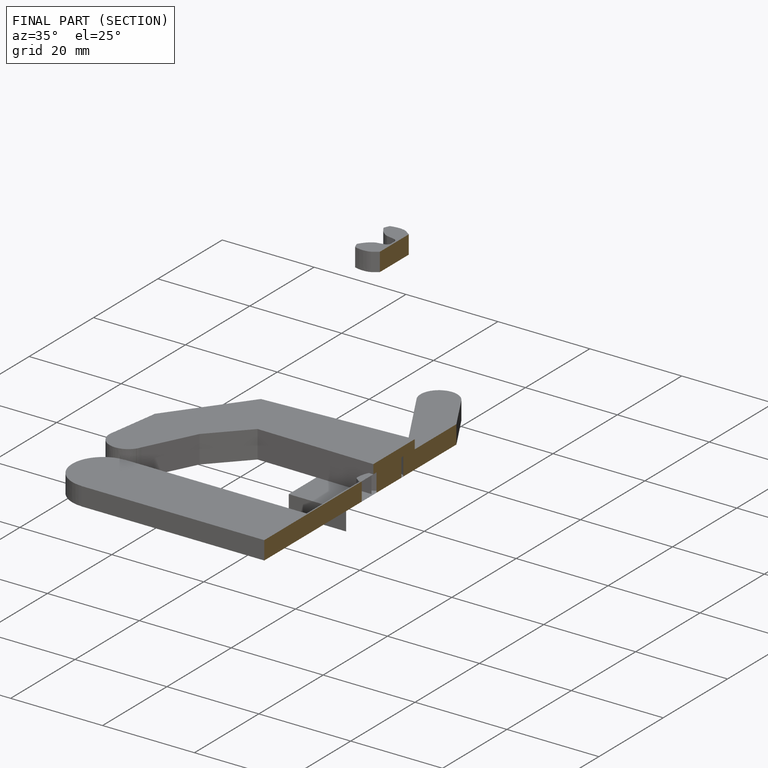
[diagram: finished part — half-section view (interior)]
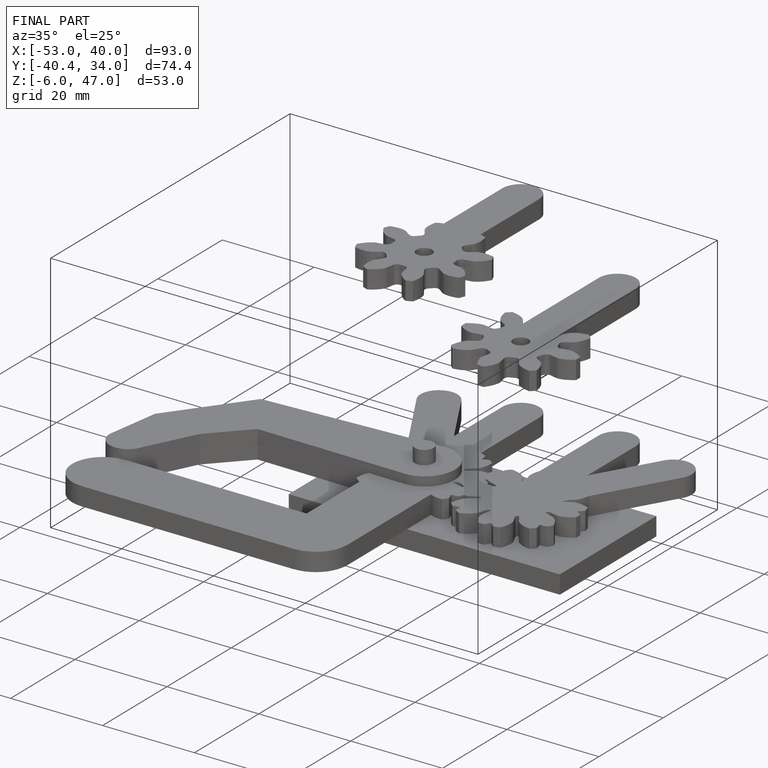
[diagram: finished part — iso view with bounding-box wireframe]
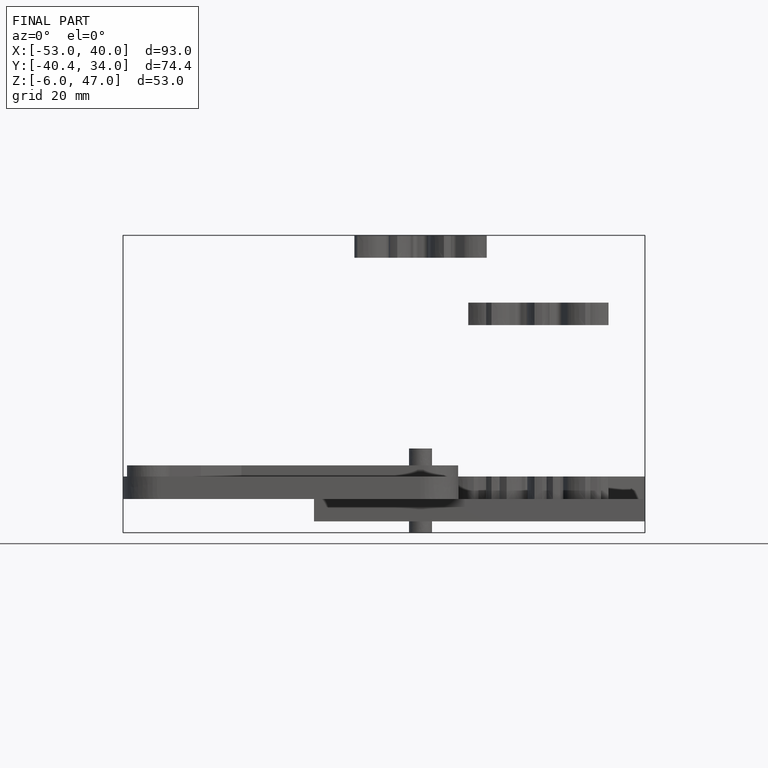
[diagram: finished part — front view with bounding-box wireframe]
